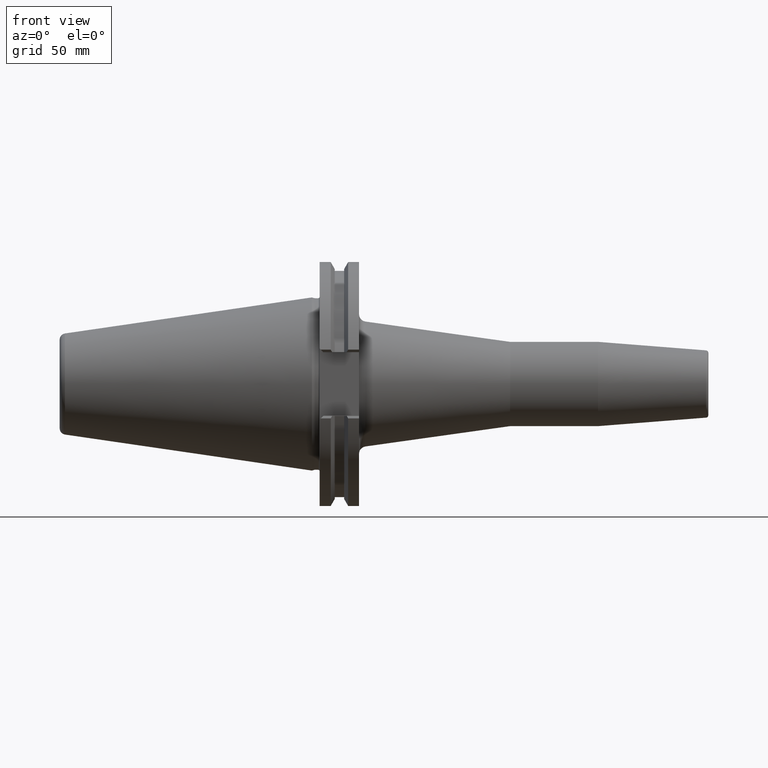
[diagram: clean part render]
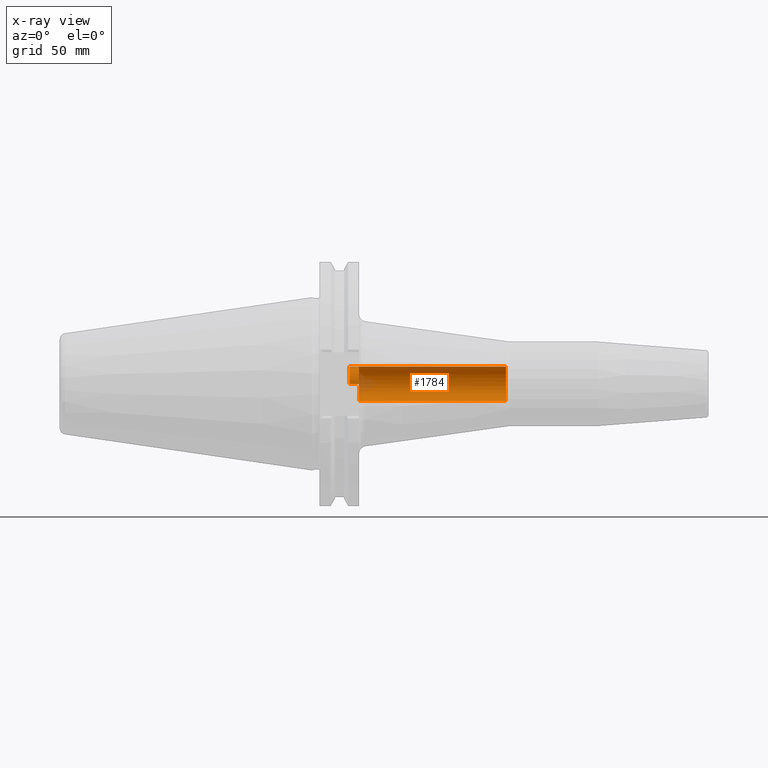
[diagram: x-ray — body ghosted, one internal face saturated and labeled with its STEP entity id]
A machine part, front view, then the same camera in x-ray: the body is ghosted and one INTERNAL B-rep face — a face not visible from any outside direction — is saturated and labeled: STEP entity #1784.
In plain terms, the highlighted cylindrical surface (edge-blend (fillet) strip) has radius 7 mm, axis along (1, 0, 0).
Its self-contained STEP definition (entity closure, byte-faithful):
#252=CARTESIAN_POINT('',(1.905E1,0.E0,0.E0));
#253=DIRECTION('',(1.E0,0.E0,0.E0));
#254=DIRECTION('',(0.E0,0.E0,-1.E0));
#255=AXIS2_PLACEMENT_3D('',#252,#253,#254);
#257=DIRECTION('',(1.E0,0.E0,0.E0));
#258=VECTOR('',#257,5.935E1);
#259=CARTESIAN_POINT('',(1.905E1,0.E0,-7.E0));
#260=LINE('',#259,#258);
#261=DIRECTION('',(1.E0,0.E0,0.E0));
#262=VECTOR('',#261,5.935E1);
#263=CARTESIAN_POINT('',(1.905E1,0.E0,7.E0));
#264=LINE('',#263,#262);
#265=DIRECTION('',(1.E0,0.E0,0.E0));
#266=VECTOR('',#265,3.847202988160E0);
#267=CARTESIAN_POINT('',(1.520279701184E1,-7.E0,0.E0));
#268=LINE('',#267,#266);
#269=CARTESIAN_POINT('',(1.905E1,0.E0,0.E0));
#270=DIRECTION('',(1.E0,0.E0,0.E0));
#271=DIRECTION('',(0.E0,0.E0,1.E0));
#272=AXIS2_PLACEMENT_3D('',#269,#270,#271);
#274=DIRECTION('',(1.E0,0.E0,0.E0));
#275=VECTOR('',#274,3.847202988160E0);
#276=CARTESIAN_POINT('',(1.520279701184E1,7.E0,0.E0));
#277=LINE('',#276,#275);
#278=CARTESIAN_POINT('',(7.84E1,0.E0,0.E0));
#279=DIRECTION('',(1.E0,0.E0,0.E0));
#280=DIRECTION('',(0.E0,0.E0,-1.E0));
#281=AXIS2_PLACEMENT_3D('',#278,#279,#280);
#1061=CARTESIAN_POINT('',(1.520279701184E1,0.E0,0.E0));
#1062=DIRECTION('',(1.E0,0.E0,0.E0));
#1063=DIRECTION('',(0.E0,1.E0,0.E0));
#1064=AXIS2_PLACEMENT_3D('',#1061,#1062,#1063);
#1289=CARTESIAN_POINT('',(1.520279701184E1,-7.E0,0.E0));
#1290=CARTESIAN_POINT('',(1.520279701184E1,7.E0,0.E0));
#1291=VERTEX_POINT('',#1289);
#1292=VERTEX_POINT('',#1290);
#1293=CARTESIAN_POINT('',(7.84E1,0.E0,-7.E0));
#1295=VERTEX_POINT('',#1293);
#1323=CARTESIAN_POINT('',(7.84E1,0.E0,7.E0));
#1325=VERTEX_POINT('',#1323);
#1353=CARTESIAN_POINT('',(1.905E1,0.E0,-7.E0));
#1354=CARTESIAN_POINT('',(1.905E1,7.E0,0.E0));
#1355=VERTEX_POINT('',#1353);
#1356=VERTEX_POINT('',#1354);
#1361=CARTESIAN_POINT('',(1.905E1,0.E0,7.E0));
#1362=CARTESIAN_POINT('',(1.905E1,-7.E0,0.E0));
#1363=VERTEX_POINT('',#1361);
#1364=VERTEX_POINT('',#1362);
#1767=CARTESIAN_POINT('',(-1.0175E2,0.E0,0.E0));
#1768=DIRECTION('',(1.E0,0.E0,0.E0));
#1769=DIRECTION('',(0.E0,1.E0,0.E0));
#1770=AXIS2_PLACEMENT_3D('',#1767,#1768,#1769);
#1771=CYLINDRICAL_SURFACE('',#1770,7.E0);
#1772=ORIENTED_EDGE('',*,*,#1757,.F.);
#1773=ORIENTED_EDGE('',*,*,#1755,.T.);
#1775=ORIENTED_EDGE('',*,*,#1774,.F.);
#1776=ORIENTED_EDGE('',*,*,#1751,.F.);
#1777=ORIENTED_EDGE('',*,*,#1749,.T.);
#1778=ORIENTED_EDGE('',*,*,#1762,.F.);
#1780=ORIENTED_EDGE('',*,*,#1779,.T.);
#1781=ORIENTED_EDGE('',*,*,#1759,.T.);
#1782=EDGE_LOOP('',(#1772,#1773,#1775,#1776,#1777,#1778,#1780,#1781));
#1783=FACE_OUTER_BOUND('',#1782,.F.);
#1784=ADVANCED_FACE('',(#1783),#1771,.F.);
#256=CIRCLE('',#255,7.E0);
#273=CIRCLE('',#272,7.E0);
#282=CIRCLE('',#281,7.E0);
#1065=CIRCLE('',#1064,7.E0);
#1749=EDGE_CURVE('',#1355,#1356,#256,.T.);
#1751=EDGE_CURVE('',#1355,#1295,#260,.T.);
#1755=EDGE_CURVE('',#1363,#1325,#264,.T.);
#1757=EDGE_CURVE('',#1363,#1364,#273,.T.);
#1759=EDGE_CURVE('',#1291,#1364,#268,.T.);
#1762=EDGE_CURVE('',#1292,#1356,#277,.T.);
#1774=EDGE_CURVE('',#1295,#1325,#282,.T.);
#1779=EDGE_CURVE('',#1292,#1291,#1065,.T.);